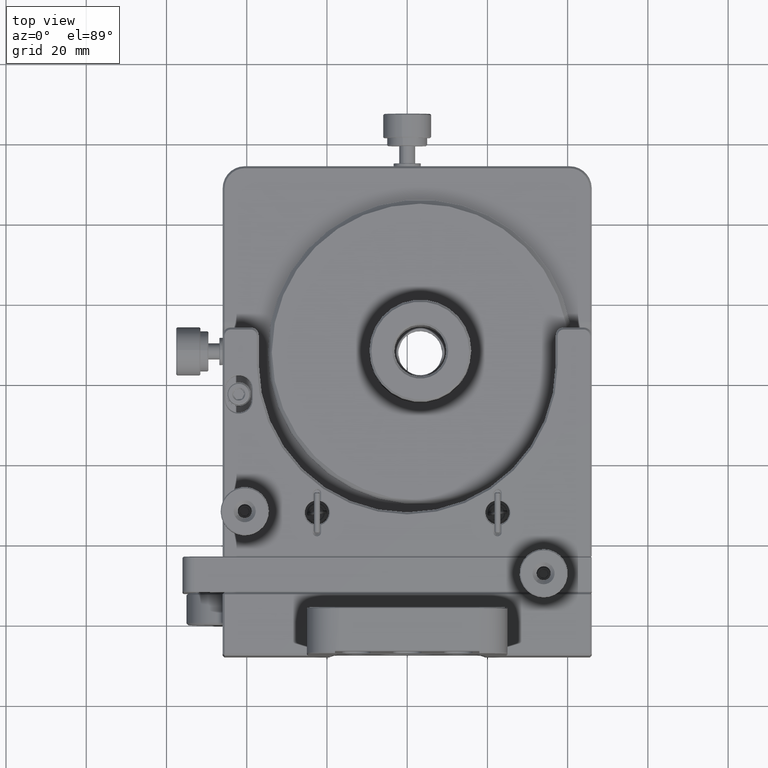
[diagram: clean part render]
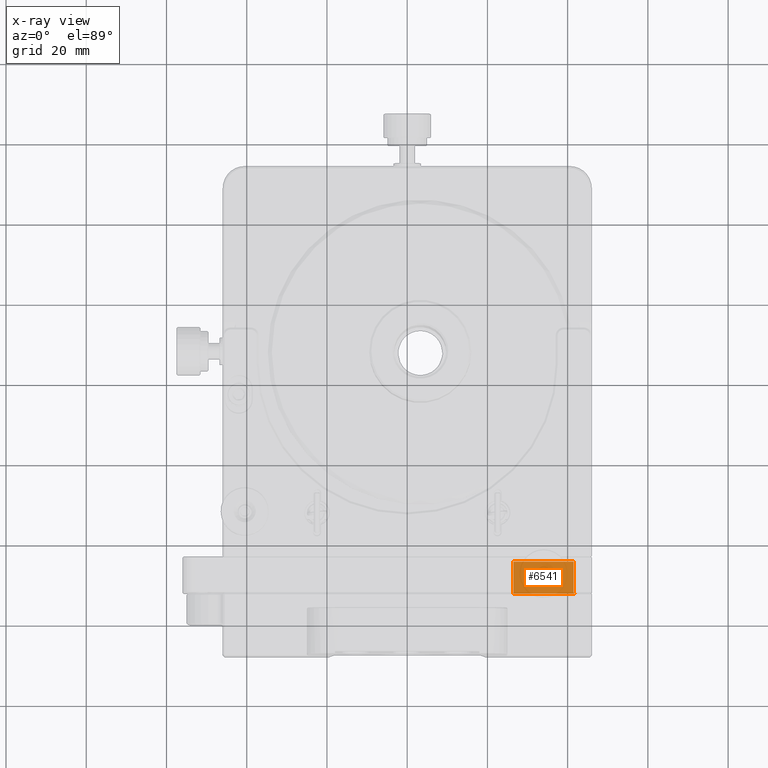
[diagram: x-ray — body ghosted, one internal face saturated and labeled with its STEP entity id]
A machine part, top view, then the same camera in x-ray: the body is ghosted and one INTERNAL B-rep face — a face not visible from any outside direction — is saturated and labeled: STEP entity #6541.
In plain terms, the highlighted planar face has unit normal (0, 0, -1).
Its self-contained STEP definition (entity closure, byte-faithful):
#885 = EDGE_CURVE ( 'NONE', #79653, #2219, #166264, .T. ) ;
#2219 = VERTEX_POINT ( 'NONE', #67301 ) ;
#6408 = DIRECTION ( 'NONE',  ( 0.7071067811865691111, 0.7071067811865260344, 8.087701538549911964E-17 ) ) ;
#6541 = ADVANCED_FACE ( 'NONE', ( #161297 ), #96292, .T. ) ;
#17147 = CARTESIAN_POINT ( 'NONE',  ( 26.50000000000002132, 8.149999999999987921, -9.285014186268712777 ) ) ;
#18007 = EDGE_CURVE ( 'NONE', #79653, #159979, #41389, .T. ) ;
#20112 = VERTEX_POINT ( 'NONE', #17147 ) ;
#22269 = VECTOR ( 'NONE', #66249, 1000.000000000000000 ) ;
#22311 = ORIENTED_EDGE ( 'NONE', *, *, #153586, .T. ) ;
#22378 = LINE ( 'NONE', #102490, #99477 ) ;
#31352 = CARTESIAN_POINT ( 'NONE',  ( 26.50000000000002132, 15.90000000000000036, -9.285014186268709224 ) ) ;
#31749 = VECTOR ( 'NONE', #93912, 1000.000000000000000 ) ;
#33246 = VECTOR ( 'NONE', #128423, 1000.000000000000000 ) ;
#33606 = VECTOR ( 'NONE', #86956, 1000.000000000000000 ) ;
#41389 = LINE ( 'NONE', #94793, #31749 ) ;
#41701 = CARTESIAN_POINT ( 'NONE',  ( 41.50000000000001421, 15.90000000000000036, -9.285014186268709224 ) ) ;
#47778 = CARTESIAN_POINT ( 'NONE',  ( 1.172691554119506636E-15, 15.90000000000000036, -9.285014186268714553 ) ) ;
#58164 = LINE ( 'NONE', #154262, #33246 ) ;
#66249 = DIRECTION ( 'NONE',  ( 1.000000000000000000, -0.000000000000000000, 1.143773720424268295E-16 ) ) ;
#67301 = CARTESIAN_POINT ( 'NONE',  ( 41.50000000000001421, 15.90000000000000036, -9.285014186268709224 ) ) ;
#67755 = AXIS2_PLACEMENT_3D ( 'NONE', #135464, #93632, #173774 ) ;
#70319 = VECTOR ( 'NONE', #95986, 1000.000000000000000 ) ;
#74508 = LINE ( 'NONE', #47778, #33606 ) ;
#79603 = LINE ( 'NONE', #159724, #22269 ) ;
#79653 = VERTEX_POINT ( 'NONE', #99857 ) ;
#83941 = ORIENTED_EDGE ( 'NONE', *, *, #18007, .T. ) ;
#86956 = DIRECTION ( 'NONE',  ( 1.000000000000000000, 0.000000000000000000, 1.143773720424268295E-16 ) ) ;
#92637 = EDGE_LOOP ( 'NONE', ( #174491, #167088, #143535, #22311, #156301, #83941 ) ) ;
#93632 = DIRECTION ( 'NONE',  ( 1.143773720424268295E-16, 1.417236517160936646E-32, -1.000000000000000000 ) ) ;
#93912 = DIRECTION ( 'NONE',  ( 0.7071067811865671127, -0.7071067811865279218, 8.087701538549887312E-17 ) ) ;
#94793 = CARTESIAN_POINT ( 'NONE',  ( 41.50000000000001421, 8.149999999999986144, -9.285014186268709224 ) ) ;
#95986 = DIRECTION ( 'NONE',  ( 0.000000000000000000, 1.000000000000000000, 1.417236517160936646E-32 ) ) ;
#96292 = PLANE ( 'NONE',  #67755 ) ;
#99477 = VECTOR ( 'NONE', #6408, 1000.000000000000114 ) ;
#99857 = CARTESIAN_POINT ( 'NONE',  ( 41.50000000000001421, 8.149999999999987921, -9.285014186268709224 ) ) ;
#102490 = CARTESIAN_POINT ( 'NONE',  ( 26.50000000000002132, 8.149999999999987921, -9.285014186268712777 ) ) ;
#112563 = EDGE_CURVE ( 'NONE', #115499, #159979, #79603, .T. ) ;
#115499 = VERTEX_POINT ( 'NONE', #134875 ) ;
#121100 = CARTESIAN_POINT ( 'NONE',  ( 41.75000000000000711, 7.900000000000003908, -9.285014186268709224 ) ) ;
#126205 = VERTEX_POINT ( 'NONE', #31352 ) ;
#128423 = DIRECTION ( 'NONE',  ( 2.297676128346433710E-48, -1.000000000000000000, -1.417236517160936646E-32 ) ) ;
#134875 = CARTESIAN_POINT ( 'NONE',  ( 26.25000000000001776, 7.900000000000000355, -9.285014186268712777 ) ) ;
#135464 = CARTESIAN_POINT ( 'NONE',  ( 45.49999999999998579, 110.6579292182763510, -9.285014186268709224 ) ) ;
#143535 = ORIENTED_EDGE ( 'NONE', *, *, #148179, .F. ) ;
#148179 = EDGE_CURVE ( 'NONE', #126205, #20112, #58164, .T. ) ;
#153586 = EDGE_CURVE ( 'NONE', #126205, #2219, #74508, .T. ) ;
#154262 = CARTESIAN_POINT ( 'NONE',  ( 26.50000000000002132, 15.90000000000000036, -9.285014186268712777 ) ) ;
#156301 = ORIENTED_EDGE ( 'NONE', *, *, #885, .F. ) ;
#159724 = CARTESIAN_POINT ( 'NONE',  ( 45.49999999999998579, 7.900000000000003908, -9.285014186268709224 ) ) ;
#159979 = VERTEX_POINT ( 'NONE', #121100 ) ;
#161297 = FACE_OUTER_BOUND ( 'NONE', #92637, .T. ) ;
#166264 = LINE ( 'NONE', #41701, #70319 ) ;
#167088 = ORIENTED_EDGE ( 'NONE', *, *, #170922, .T. ) ;
#170922 = EDGE_CURVE ( 'NONE', #115499, #20112, #22378, .T. ) ;
#173774 = DIRECTION ( 'NONE',  ( -1.000000000000000000, 0.000000000000000000, -1.143773720424268295E-16 ) ) ;
#174491 = ORIENTED_EDGE ( 'NONE', *, *, #112563, .F. ) ;